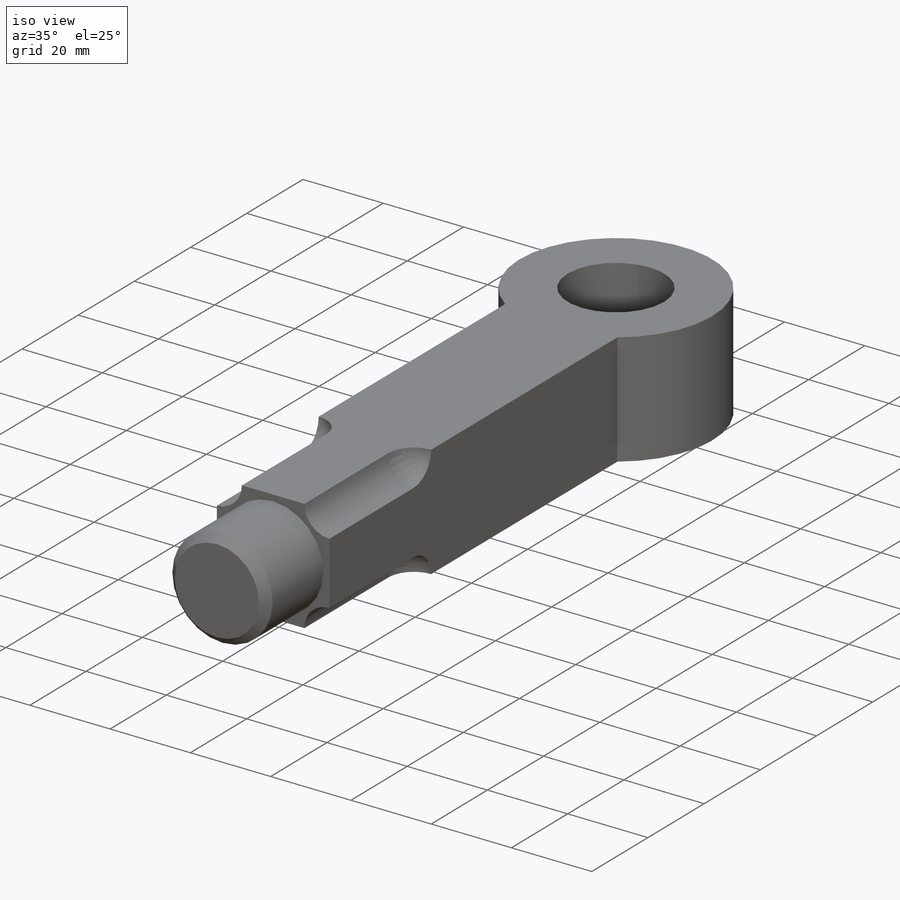
[diagram: iso view]
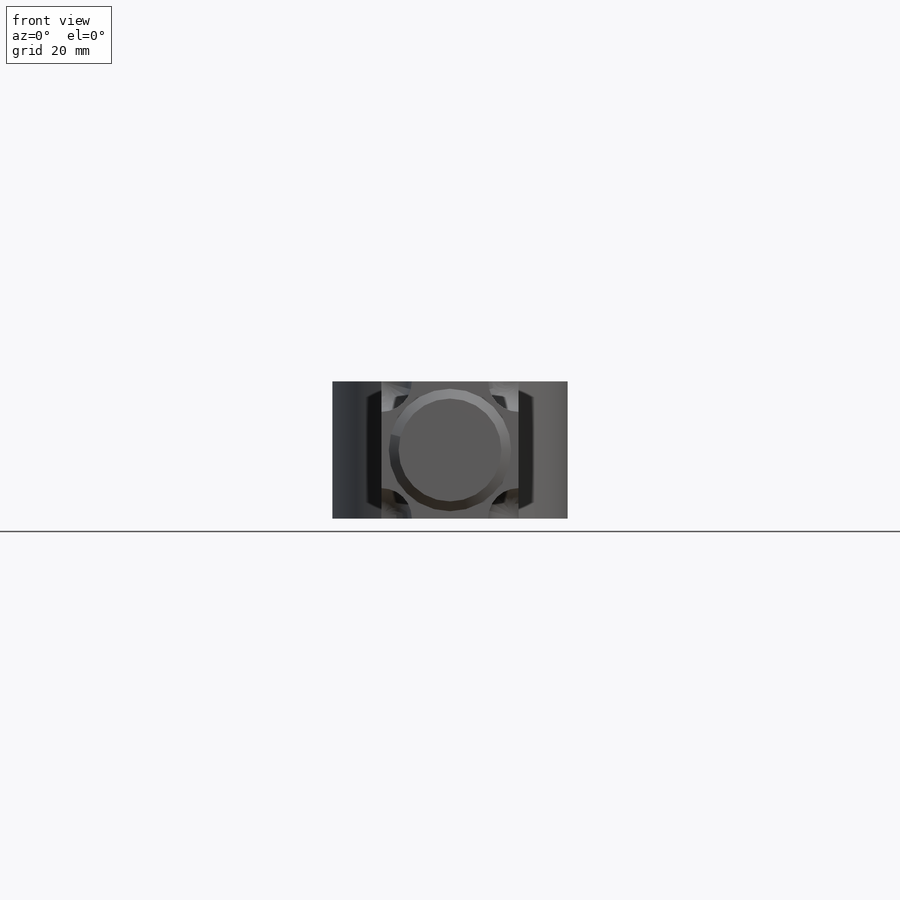
[diagram: front view]
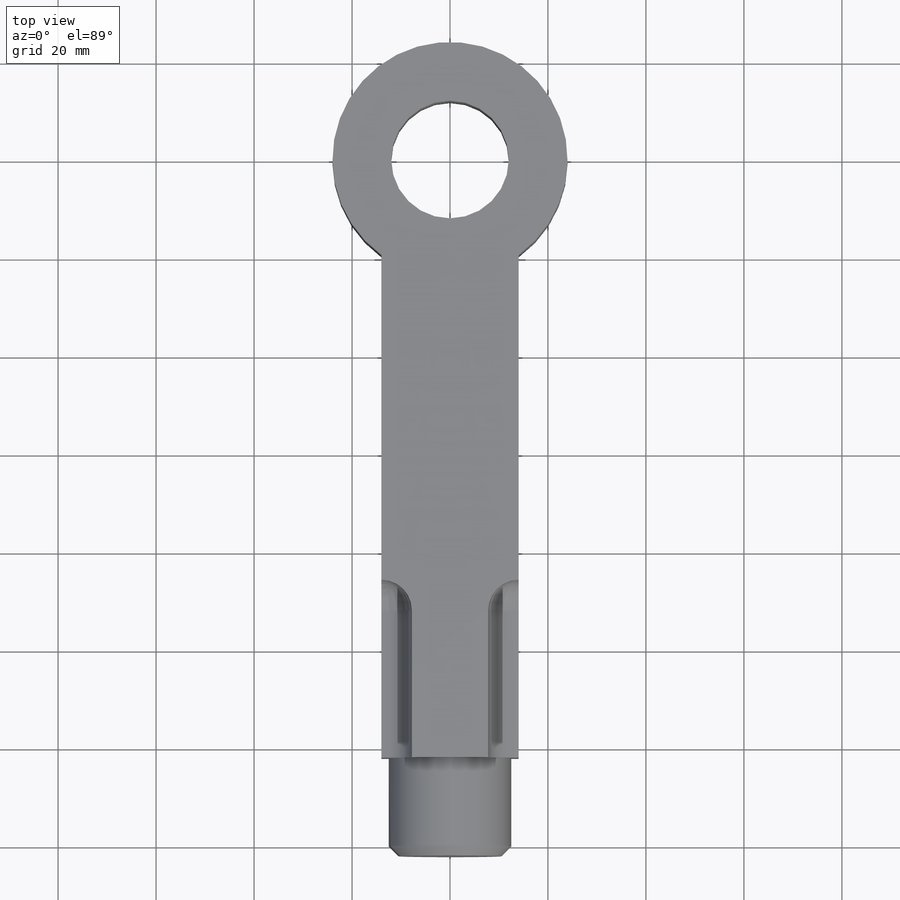
[diagram: top view]
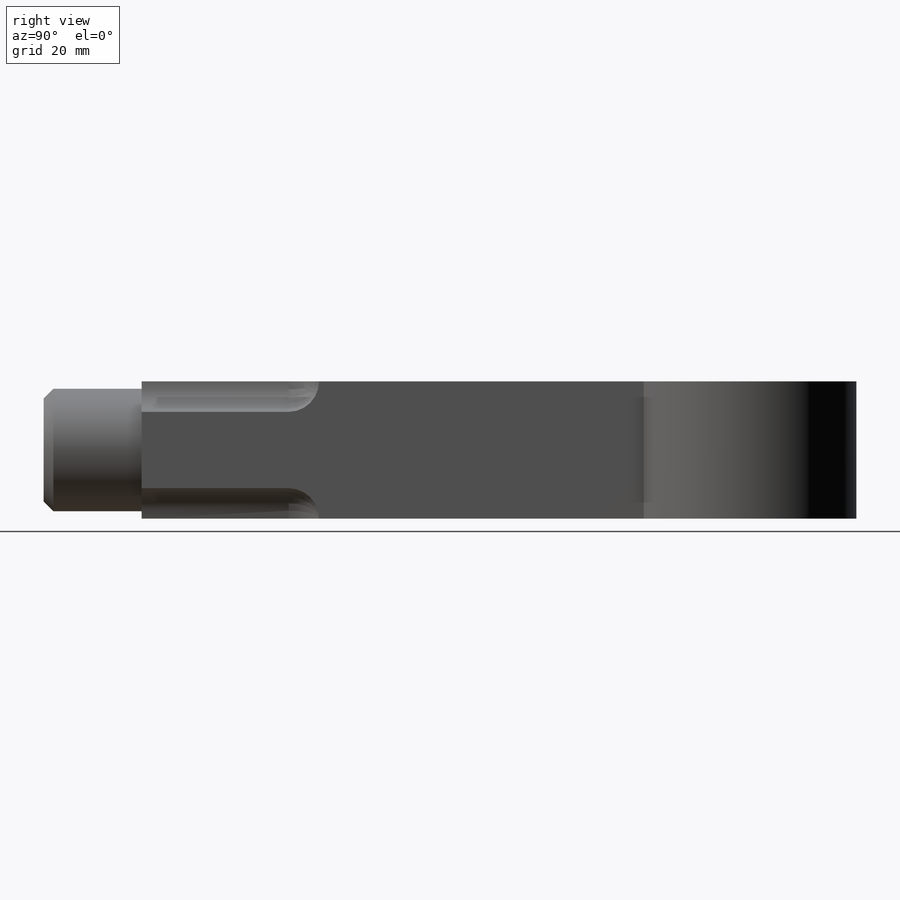
[diagram: right view]
SOLIDWORKS PART (.sldprt)
format: sldprt  version: not decoded by parser v0  size: 178,176 bytes
history: native  units: mm
features: sketch x4, extrude x3, mirror x2, material x1, plane x1, cut_revolve x1, chamfer x1 (+12 scaffold rows collapsed)
feature tree (25):
  scaffold x12  (default folders/planes/origin — collapsed)
  material  "Material <not specified>"
  sketch  "Sketch1"  dims[D1=48.0mm D2=24.0mm]
  extrude  "Boss-Extrude1"  Depth=28mm
  plane  "Plane1"  Offset=122mm
  sketch  "Sketch2"  dims[D1=28.0mm D2=28.0mm]
  extrude  "Boss-Extrude2"  [1 undecoded]
  sketch  "Sketch3"  dims[c1.D1=~5.180571mm c2.D1=270.0deg c3.D1=6.22mm c3.D2=0.0mm c3.D3=30.0mm c3.D4=36.22mm]
  cut_revolve  "Cut-Revolve1"  Angle=360deg
  mirror  "Mirror1"
  mirror  "Mirror2"
  sketch  "Sketch4"  dims[D1=25.0mm]
  extrude  "Boss-Extrude3"  Depth=20mm
  chamfer  "Chamfer1"  Distance=2mm Angle=45deg
decode coverage: 8 of 11 modeling features carry decoded parameters
note: ~ marks probable driven/reference dimensions
note: 1 parameter value undecoded
note: suppression state not decoded; provenance and decode notes live in map.json
